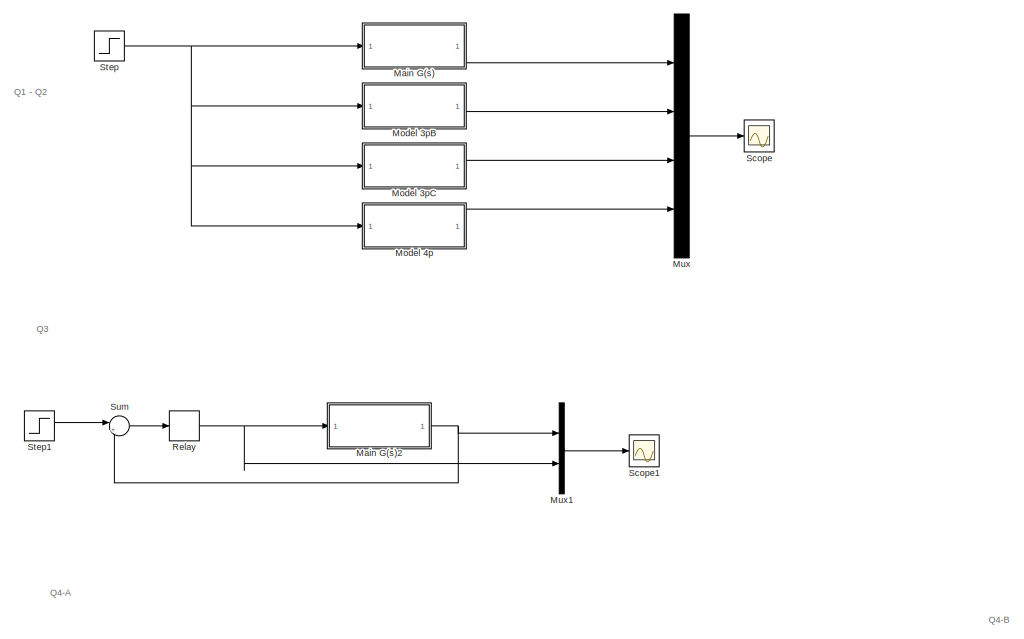
[diagram: root canvas - part 1/4, top left region]
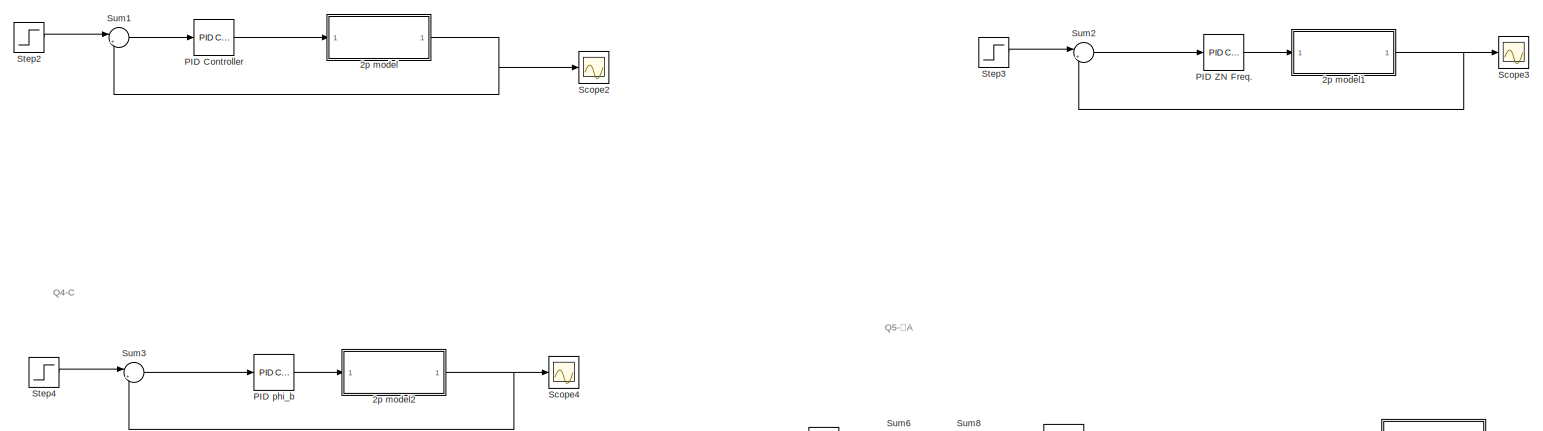
[diagram: root canvas - part 2/4, full width, middle band]
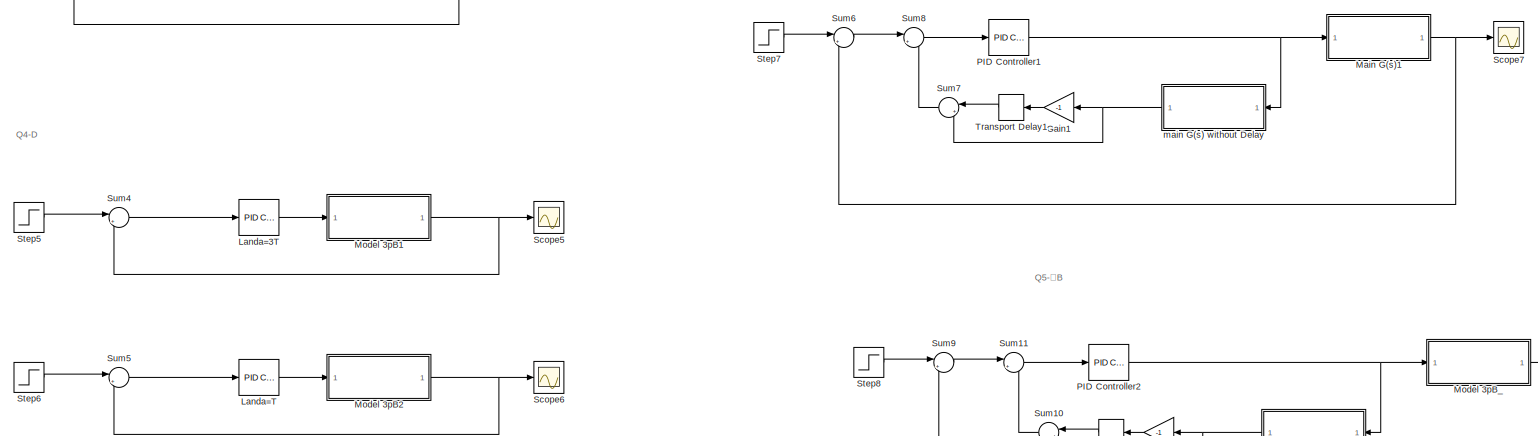
[diagram: root canvas - part 3/4, full width, bottom band]
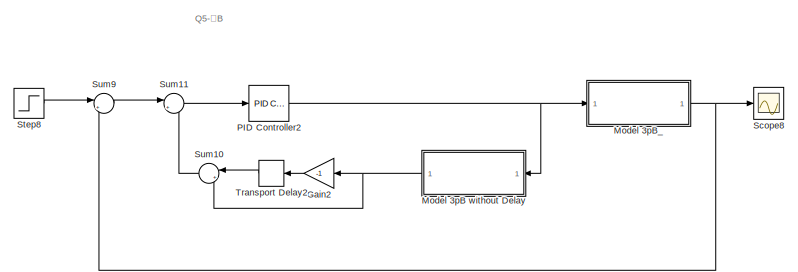
[diagram: root canvas - part 4/4, bottom right region]
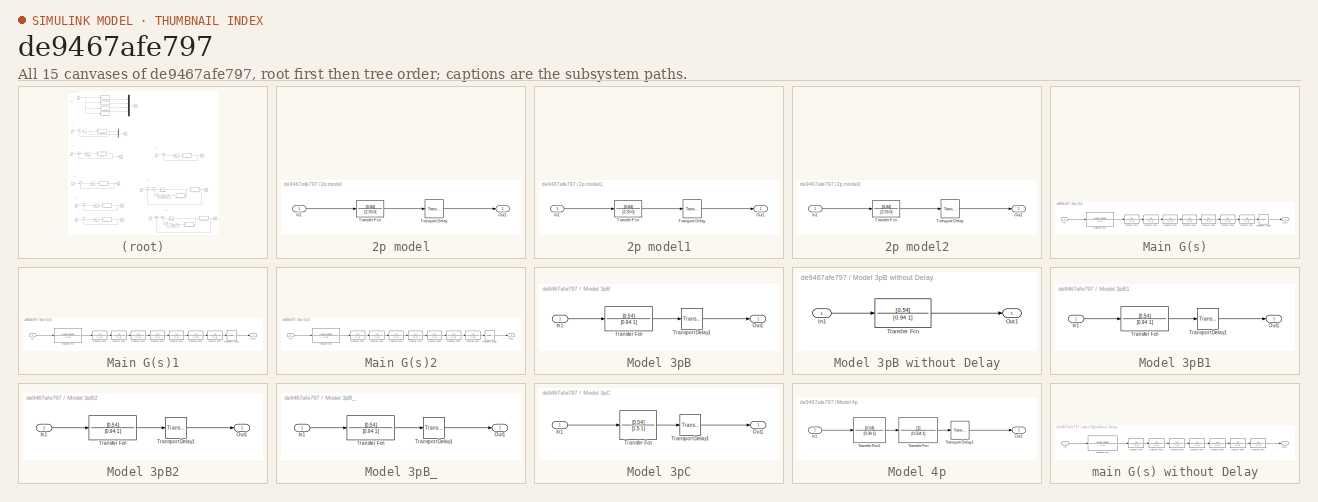
[diagram: thumbnail index - all 15 canvases of the model, root first then tree order]
MODEL slx_de9467afe797
KIND model
CONFIG AbsTol = auto
CONFIG EnableMultiTasking = off
CONFIG FixedStep = auto
CONFIG MaxStep = auto
CONFIG MinStep = auto
CONFIG RelTol = 1e-3
CONFIG SampleTimeConstraint = Unconstrained
CONFIG SolverName = VariableStepAuto
CONFIG StartTime = 0.0
CONFIG StopTime = 80
BLOCK [SubSystem] 2p model
  Ports = [1, 1]
  RequestExecContextInheritance = off
BLOCK [Inport] 2p model/In1
BLOCK [Outport] 2p model/Out1
BLOCK [TransferFcn] 2p model/Transfer Fcn
  Denominator = [2.33 0]
  Numerator = [0.84]
BLOCK [TransportDelay] 2p model/Transport Delay
  DelayTime = 2.33
  Ports = [1, 1]
BLOCK [SubSystem] 2p model1
  Ports = [1, 1]
  RequestExecContextInheritance = off
BLOCK [Inport] 2p model1/In1
BLOCK [Outport] 2p model1/Out1
BLOCK [TransferFcn] 2p model1/Transfer Fcn
  Denominator = [2.33 0]
  Numerator = [0.84]
BLOCK [TransportDelay] 2p model1/Transport Delay
  DelayTime = 2.33
  Ports = [1, 1]
BLOCK [SubSystem] 2p model2
  Ports = [1, 1]
  RequestExecContextInheritance = off
BLOCK [Inport] 2p model2/In1
BLOCK [Outport] 2p model2/Out1
BLOCK [TransferFcn] 2p model2/Transfer Fcn
  Denominator = [2.33 0]
  Numerator = [0.84]
BLOCK [TransportDelay] 2p model2/Transport Delay
  DelayTime = 2.33
  Ports = [1, 1]
BLOCK [Gain] Gain1
  Gain = -1
BLOCK [Gain] Gain2
  Gain = -1
BLOCK [Reference] Landa=3T  REF=pid_lib/PID Controller
  Ports = [1, 1]
  SourceBlock = pid_lib/PID Controller
  SourceProductBaseCode = SL
  SourceType = PID 1dof
BLOCK [Reference] Landa=T  REF=pid_lib/PID Controller
  Ports = [1, 1]
  SourceBlock = pid_lib/PID Controller
  SourceProductBaseCode = SL
  SourceType = PID 1dof
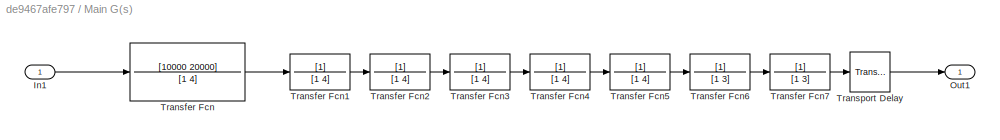
BLOCK [SubSystem] Main G(s)
  Ports = [1, 1]
  RequestExecContextInheritance = off
BLOCK [Inport] Main G(s)/In1
BLOCK [Outport] Main G(s)/Out1
BLOCK [TransferFcn] Main G(s)/Transfer Fcn
  Denominator = [1 4]
  Numerator = [10000 20000]
BLOCK [TransferFcn] Main G(s)/Transfer Fcn1
  Denominator = [1 4]
BLOCK [TransferFcn] Main G(s)/Transfer Fcn2
  Denominator = [1 4]
BLOCK [TransferFcn] Main G(s)/Transfer Fcn3
  Denominator = [1 4]
BLOCK [TransferFcn] Main G(s)/Transfer Fcn4
  Denominator = [1 4]
BLOCK [TransferFcn] Main G(s)/Transfer Fcn5
  Denominator = [1 4]
BLOCK [TransferFcn] Main G(s)/Transfer Fcn6
  Denominator = [1 3]
BLOCK [TransferFcn] Main G(s)/Transfer Fcn7
  Denominator = [1 3]
BLOCK [TransportDelay] Main G(s)/Transport Delay
  DelayTime = 1.5
  Ports = [1, 1]
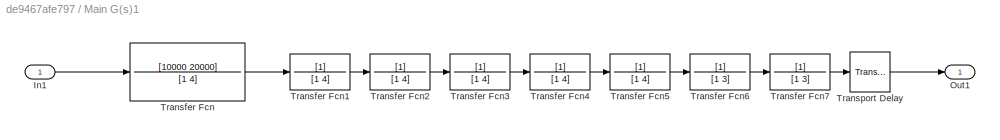
BLOCK [SubSystem] Main G(s)1
  Ports = [1, 1]
  RequestExecContextInheritance = off
BLOCK [Inport] Main G(s)1/In1
BLOCK [Outport] Main G(s)1/Out1
BLOCK [TransferFcn] Main G(s)1/Transfer Fcn
  Denominator = [1 4]
  Numerator = [10000 20000]
BLOCK [TransferFcn] Main G(s)1/Transfer Fcn1
  Denominator = [1 4]
BLOCK [TransferFcn] Main G(s)1/Transfer Fcn2
  Denominator = [1 4]
BLOCK [TransferFcn] Main G(s)1/Transfer Fcn3
  Denominator = [1 4]
BLOCK [TransferFcn] Main G(s)1/Transfer Fcn4
  Denominator = [1 4]
BLOCK [TransferFcn] Main G(s)1/Transfer Fcn5
  Denominator = [1 4]
BLOCK [TransferFcn] Main G(s)1/Transfer Fcn6
  Denominator = [1 3]
BLOCK [TransferFcn] Main G(s)1/Transfer Fcn7
  Denominator = [1 3]
BLOCK [TransportDelay] Main G(s)1/Transport Delay
  DelayTime = 1.5
  Ports = [1, 1]
BLOCK [SubSystem] Main G(s)2
  Ports = [1, 1]
  RequestExecContextInheritance = off
BLOCK [Inport] Main G(s)2/In1
BLOCK [Outport] Main G(s)2/Out1
BLOCK [TransferFcn] Main G(s)2/Transfer Fcn
  Denominator = [1 4]
  Numerator = [10000 20000]
BLOCK [TransferFcn] Main G(s)2/Transfer Fcn1
  Denominator = [1 4]
BLOCK [TransferFcn] Main G(s)2/Transfer Fcn2
  Denominator = [1 4]
BLOCK [TransferFcn] Main G(s)2/Transfer Fcn3
  Denominator = [1 4]
BLOCK [TransferFcn] Main G(s)2/Transfer Fcn4
  Denominator = [1 4]
BLOCK [TransferFcn] Main G(s)2/Transfer Fcn5
  Denominator = [1 4]
BLOCK [TransferFcn] Main G(s)2/Transfer Fcn6
  Denominator = [1 3]
BLOCK [TransferFcn] Main G(s)2/Transfer Fcn7
  Denominator = [1 3]
BLOCK [TransportDelay] Main G(s)2/Transport Delay
  DelayTime = 1.5
  Ports = [1, 1]
BLOCK [SubSystem] Model 3pB
  Ports = [1, 1]
  RequestExecContextInheritance = off
BLOCK [SubSystem] Model 3pB without Delay
  Ports = [1, 1]
  RequestExecContextInheritance = off
BLOCK [Inport] Model 3pB without Delay/In1
BLOCK [Outport] Model 3pB without Delay/Out1
BLOCK [TransferFcn] Model 3pB without Delay/Transfer Fcn
  Denominator = [0.94 1]
  Numerator = [0.54]
BLOCK [Inport] Model 3pB/In1
BLOCK [Outport] Model 3pB/Out1
BLOCK [TransferFcn] Model 3pB/Transfer Fcn
  Denominator = [0.94 1]
  Numerator = [0.54]
BLOCK [TransportDelay] Model 3pB/Transport Delay1
  DelayTime = 2.33
  Ports = [1, 1]
BLOCK [SubSystem] Model 3pB1
  Ports = [1, 1]
  RequestExecContextInheritance = off
BLOCK [Inport] Model 3pB1/In1
BLOCK [Outport] Model 3pB1/Out1
BLOCK [TransferFcn] Model 3pB1/Transfer Fcn
  Denominator = [0.94 1]
  Numerator = [0.54]
BLOCK [TransportDelay] Model 3pB1/Transport Delay1
  DelayTime = 2.33
  Ports = [1, 1]
BLOCK [SubSystem] Model 3pB2
  Ports = [1, 1]
  RequestExecContextInheritance = off
BLOCK [Inport] Model 3pB2/In1
BLOCK [Outport] Model 3pB2/Out1
BLOCK [TransferFcn] Model 3pB2/Transfer Fcn
  Denominator = [0.94 1]
  Numerator = [0.54]
BLOCK [TransportDelay] Model 3pB2/Transport Delay1
  DelayTime = 2.33
  Ports = [1, 1]
BLOCK [SubSystem] Model 3pB_
  Ports = [1, 1]
  RequestExecContextInheritance = off
BLOCK [Inport] Model 3pB_/In1
BLOCK [Outport] Model 3pB_/Out1
BLOCK [TransferFcn] Model 3pB_/Transfer Fcn
  Denominator = [0.94 1]
  Numerator = [0.54]
BLOCK [TransportDelay] Model 3pB_/Transport Delay1
  DelayTime = 2.33
  Ports = [1, 1]
BLOCK [SubSystem] Model 3pC
  Ports = [1, 1]
  RequestExecContextInheritance = off
BLOCK [Inport] Model 3pC/In1
BLOCK [Outport] Model 3pC/Out1
BLOCK [TransferFcn] Model 3pC/Transfer Fcn
  Denominator = [1.5 1]
  Numerator = [0.54]
BLOCK [TransportDelay] Model 3pC/Transport Delay1
  DelayTime = 2.33
  Ports = [1, 1]
BLOCK [SubSystem] Model 4p
  Ports = [1, 1]
  RequestExecContextInheritance = off
BLOCK [Inport] Model 4p/In1
BLOCK [Outport] Model 4p/Out1
BLOCK [TransferFcn] Model 4p/Transfer Fcn
  Denominator = [0.504 1]
BLOCK [TransferFcn] Model 4p/Transfer Fcn1
  Denominator = [0.38 1]
  Numerator = [0.54]
BLOCK [TransportDelay] Model 4p/Transport Delay1
  DelayTime = 2.33
  Ports = [1, 1]
BLOCK [Mux] Mux
  DisplayOption = bar
  Ports = [4, 1]
BLOCK [Mux] Mux1
  DisplayOption = bar
  Inputs = 2
  Ports = [2, 1]
BLOCK [Reference] PID Controller  REF=pid_lib/PID Controller
  Ports = [1, 1]
  SourceBlock = pid_lib/PID Controller
  SourceProductBaseCode = SL
  SourceType = PID 1dof
BLOCK [Reference] PID Controller1  REF=pid_lib/PID Controller
  Ports = [1, 1]
  SourceBlock = pid_lib/PID Controller
  SourceProductBaseCode = SL
  SourceType = PID 1dof
BLOCK [Reference] PID Controller2  REF=pid_lib/PID Controller
  Ports = [1, 1]
  SourceBlock = pid_lib/PID Controller
  SourceProductBaseCode = SL
  SourceType = PID 1dof
BLOCK [Reference] PID ZN Freq.  REF=pid_lib/PID Controller
  Ports = [1, 1]
  SourceBlock = pid_lib/PID Controller
  SourceProductBaseCode = SL
  SourceType = PID 1dof
BLOCK [Reference] PID phi_b  REF=pid_lib/PID Controller
  Ports = [1, 1]
  SourceBlock = pid_lib/PID Controller
  SourceProductBaseCode = SL
  SourceType = PID 1dof
BLOCK [Relay] Relay
  OffOutputValue = -5
  OnOutputValue = 5
BLOCK [Scope] Scope
  Floating = off
  NumInputPorts = 1
  Ports = [1]
  ScopeSpecificationString = Simulink.scopes.TimeScopeBlockCfg('CurrentConfiguration', extmgr.ConfigurationSet(extmgr.Configuration('Core','General UI',true,'FigureColor',[0 0 0]),extmgr.Configuration('Core','Source UI',true),extmgr.Configuration('Sources','WiredSimulink',true),extmgr.Configuration('Visuals','Time Domain',true,'SerializedDisplays',{struct('MinYLimReal','-0.06787','MaxYLimReal','0.61084','YLabelReal','','MinYL...<+1724ch>
BLOCK [Scope] Scope1
  Floating = off
  NumInputPorts = 1
  Ports = [1]
  ScopeSpecificationString = Simulink.scopes.TimeScopeBlockCfg('CurrentConfiguration', extmgr.ConfigurationSet(extmgr.Configuration('Core','General UI',true,'FigureColor',[0 0 0]),extmgr.Configuration('Core','Source UI',true),extmgr.Configuration('Sources','WiredSimulink',true,'DataLoggingVariableName','ScopeData1'),extmgr.Configuration('Visuals','Time Domain',true,'SerializedDisplays',{struct('MinYLimReal','-3.26045','MaxYLi...<+2173ch>
BLOCK [Scope] Scope2
  Floating = off
  NumInputPorts = 1
  Ports = [1]
  ScopeSpecificationString = Simulink.scopes.TimeScopeBlockCfg('CurrentConfiguration', extmgr.ConfigurationSet(extmgr.Configuration('Core','General UI',true,'FigureColor',[0 0 0]),extmgr.Configuration('Core','Source UI',true),extmgr.Configuration('Sources','WiredSimulink',true,'DataLoggingVariableName','ScopeData1'),extmgr.Configuration('Visuals','Time Domain',true,'SerializedDisplays',{struct('MinYLimReal','-0.02863','MaxYLi...<+1812ch>
BLOCK [Scope] Scope3
  Floating = off
  NumInputPorts = 1
  Ports = [1]
  ScopeSpecificationString = Simulink.scopes.TimeScopeBlockCfg('CurrentConfiguration', extmgr.ConfigurationSet(extmgr.Configuration('Core','General UI',true,'FigureColor',[0 0 0]),extmgr.Configuration('Core','Source UI',true),extmgr.Configuration('Sources','WiredSimulink',true,'DataLoggingVariableName','ScopeData1'),extmgr.Configuration('Visuals','Time Domain',true,'SerializedDisplays',{struct('MinYLimReal','-0.21739','MaxYLi...<+1805ch>
BLOCK [Scope] Scope4
  Floating = off
  NumInputPorts = 1
  Ports = [1]
  ScopeSpecificationString = Simulink.scopes.TimeScopeBlockCfg('CurrentConfiguration', extmgr.ConfigurationSet(extmgr.Configuration('Core','General UI',true,'FigureColor',[0 0 0]),extmgr.Configuration('Core','Source UI',true),extmgr.Configuration('Sources','WiredSimulink',true,'DataLoggingVariableName','ScopeData1'),extmgr.Configuration('Visuals','Time Domain',true,'SerializedDisplays',{struct('MinYLimReal','-0.16719','MaxYLi...<+1811ch>
BLOCK [Scope] Scope5
  Floating = off
  NumInputPorts = 1
  Ports = [1]
  ScopeSpecificationString = Simulink.scopes.TimeScopeBlockCfg('CurrentConfiguration', extmgr.ConfigurationSet(extmgr.Configuration('Core','General UI',true,'FigureColor',[0 0 0]),extmgr.Configuration('Core','Source UI',true),extmgr.Configuration('Sources','WiredSimulink',true,'DataLoggingVariableName','ScopeData2'),extmgr.Configuration('Visuals','Time Domain',true,'SerializedDisplays',{struct('MinYLimReal','-0.16719','MaxYLi...<+1811ch>
BLOCK [Scope] Scope6
  Floating = off
  NumInputPorts = 1
  Ports = [1]
  ScopeSpecificationString = Simulink.scopes.TimeScopeBlockCfg('CurrentConfiguration', extmgr.ConfigurationSet(extmgr.Configuration('Core','General UI',true,'FigureColor',[0 0 0]),extmgr.Configuration('Core','Source UI',true),extmgr.Configuration('Sources','WiredSimulink',true,'DataLoggingVariableName','ScopeData3'),extmgr.Configuration('Visuals','Time Domain',true,'SerializedDisplays',{struct('MinYLimReal','-0.2061','MaxYLim...<+1805ch>
BLOCK [Scope] Scope7
  Floating = off
  NumInputPorts = 1
  Ports = [1]
  ScopeSpecificationString = Simulink.scopes.TimeScopeBlockCfg('CurrentConfiguration', extmgr.ConfigurationSet(extmgr.Configuration('Core','General UI',true,'FigureColor',[0 0 0]),extmgr.Configuration('Core','Source UI',true),extmgr.Configuration('Sources','WiredSimulink',true,'DataLoggingVariableName','ScopeData1'),extmgr.Configuration('Visuals','Time Domain',true,'SerializedDisplays',{struct('MinYLimReal','-0.16719','MaxYLi...<+1822ch>
BLOCK [Scope] Scope8
  Floating = off
  NumInputPorts = 1
  Ports = [1]
  ScopeSpecificationString = Simulink.scopes.TimeScopeBlockCfg('CurrentConfiguration', extmgr.ConfigurationSet(extmgr.Configuration('Core','General UI',true,'FigureColor',[0 0 0]),extmgr.Configuration('Core','Source UI',true),extmgr.Configuration('Sources','WiredSimulink',true,'DataLoggingVariableName','ScopeData1'),extmgr.Configuration('Visuals','Time Domain',true,'SerializedDisplays',{struct('MinYLimReal','-0.16719','MaxYLi...<+1826ch>
BLOCK [Step] Step
  SampleTime = 0
  Time = 0
BLOCK [Step] Step1
  SampleTime = 0
  Time = 0
BLOCK [Step] Step2
  SampleTime = 0
  Time = 0
BLOCK [Step] Step3
  SampleTime = 0
  Time = 0
BLOCK [Step] Step4
  SampleTime = 0
  Time = 0
BLOCK [Step] Step5
  SampleTime = 0
  Time = 0
BLOCK [Step] Step6
  SampleTime = 0
  Time = 0
BLOCK [Step] Step7
  SampleTime = 0
  Time = 0
BLOCK [Step] Step8
  SampleTime = 0
  Time = 0
BLOCK [Sum] Sum
  Inputs = |+-
  Ports = [2, 1]
BLOCK [Sum] Sum1
  Inputs = |+-
  Ports = [2, 1]
BLOCK [Sum] Sum10
  Inputs = |++
  Ports = [2, 1]
BLOCK [Sum] Sum11
  Inputs = |+-
  Ports = [2, 1]
BLOCK [Sum] Sum2
  Inputs = |+-
  Ports = [2, 1]
BLOCK [Sum] Sum3
  Inputs = |+-
  Ports = [2, 1]
BLOCK [Sum] Sum4
  Inputs = |+-
  Ports = [2, 1]
BLOCK [Sum] Sum5
  Inputs = |+-
  Ports = [2, 1]
BLOCK [Sum] Sum6
  Inputs = |+-
  Ports = [2, 1]
BLOCK [Sum] Sum7
  Inputs = |++
  Ports = [2, 1]
BLOCK [Sum] Sum8
  Inputs = |+-
  Ports = [2, 1]
BLOCK [Sum] Sum9
  Inputs = |+-
  Ports = [2, 1]
BLOCK [TransportDelay] Transport Delay1
  DelayTime = 1.5
  Ports = [1, 1]
BLOCK [TransportDelay] Transport Delay2
  DelayTime = 2.33
  Ports = [1, 1]
BLOCK [SubSystem] main G(s) without Delay
  NameLocation = top
  Ports = [1, 1]
  RequestExecContextInheritance = off
BLOCK [Inport] main G(s) without Delay/In1
BLOCK [Outport] main G(s) without Delay/Out1
BLOCK [TransferFcn] main G(s) without Delay/Transfer Fcn
  Denominator = [1 4]
  Numerator = [10000 20000]
BLOCK [TransferFcn] main G(s) without Delay/Transfer Fcn1
  Denominator = [1 4]
BLOCK [TransferFcn] main G(s) without Delay/Transfer Fcn2
  Denominator = [1 4]
BLOCK [TransferFcn] main G(s) without Delay/Transfer Fcn3
  Denominator = [1 4]
BLOCK [TransferFcn] main G(s) without Delay/Transfer Fcn4
  Denominator = [1 4]
BLOCK [TransferFcn] main G(s) without Delay/Transfer Fcn5
  Denominator = [1 4]
BLOCK [TransferFcn] main G(s) without Delay/Transfer Fcn6
  Denominator = [1 3]
BLOCK [TransferFcn] main G(s) without Delay/Transfer Fcn7
  Denominator = [1 3]
ANNOTATION (root): Q4-A
ANNOTATION (root): Q4-B
ANNOTATION (root): Q4-C
ANNOTATION (root): Q4-D
ANNOTATION (root): Q5-َA
ANNOTATION (root): Q5-َB
ANNOTATION (root): Q1 - Q2
ANNOTATION (root): Q3
LINE 2p model/In1:1 -> 2p model/Transfer Fcn:1
LINE 2p model/Transfer Fcn:1 -> 2p model/Transport Delay:1
LINE 2p model/Transport Delay:1 -> 2p model/Out1:1
LINE 2p model1/In1:1 -> 2p model1/Transfer Fcn:1
LINE 2p model1/Transfer Fcn:1 -> 2p model1/Transport Delay:1
LINE 2p model1/Transport Delay:1 -> 2p model1/Out1:1
NET 2p model1:1 -> Scope3:1, Sum2:2
LINE 2p model2/In1:1 -> 2p model2/Transfer Fcn:1
LINE 2p model2/Transfer Fcn:1 -> 2p model2/Transport Delay:1
LINE 2p model2/Transport Delay:1 -> 2p model2/Out1:1
NET 2p model2:1 -> Scope4:1, Sum3:2
NET 2p model:1 -> Scope2:1, Sum1:2
LINE Gain1:1 -> Transport Delay1:1
LINE Gain2:1 -> Transport Delay2:1
LINE Landa=3T:1 -> Model 3pB1:1
LINE Landa=T:1 -> Model 3pB2:1
LINE Main G(s)/In1:1 -> Main G(s)/Transfer Fcn:1
LINE Main G(s)/Transfer Fcn1:1 -> Main G(s)/Transfer Fcn2:1
LINE Main G(s)/Transfer Fcn2:1 -> Main G(s)/Transfer Fcn3:1
LINE Main G(s)/Transfer Fcn3:1 -> Main G(s)/Transfer Fcn4:1
LINE Main G(s)/Transfer Fcn4:1 -> Main G(s)/Transfer Fcn5:1
LINE Main G(s)/Transfer Fcn5:1 -> Main G(s)/Transfer Fcn6:1
LINE Main G(s)/Transfer Fcn6:1 -> Main G(s)/Transfer Fcn7:1
LINE Main G(s)/Transfer Fcn7:1 -> Main G(s)/Transport Delay:1
LINE Main G(s)/Transfer Fcn:1 -> Main G(s)/Transfer Fcn1:1
LINE Main G(s)/Transport Delay:1 -> Main G(s)/Out1:1
LINE Main G(s)1/In1:1 -> Main G(s)1/Transfer Fcn:1
LINE Main G(s)1/Transfer Fcn1:1 -> Main G(s)1/Transfer Fcn2:1
LINE Main G(s)1/Transfer Fcn2:1 -> Main G(s)1/Transfer Fcn3:1
LINE Main G(s)1/Transfer Fcn3:1 -> Main G(s)1/Transfer Fcn4:1
LINE Main G(s)1/Transfer Fcn4:1 -> Main G(s)1/Transfer Fcn5:1
LINE Main G(s)1/Transfer Fcn5:1 -> Main G(s)1/Transfer Fcn6:1
LINE Main G(s)1/Transfer Fcn6:1 -> Main G(s)1/Transfer Fcn7:1
LINE Main G(s)1/Transfer Fcn7:1 -> Main G(s)1/Transport Delay:1
LINE Main G(s)1/Transfer Fcn:1 -> Main G(s)1/Transfer Fcn1:1
LINE Main G(s)1/Transport Delay:1 -> Main G(s)1/Out1:1
NET Main G(s)1:1 -> Scope7:1, Sum6:2
LINE Main G(s)2/In1:1 -> Main G(s)2/Transfer Fcn:1
LINE Main G(s)2/Transfer Fcn1:1 -> Main G(s)2/Transfer Fcn2:1
LINE Main G(s)2/Transfer Fcn2:1 -> Main G(s)2/Transfer Fcn3:1
LINE Main G(s)2/Transfer Fcn3:1 -> Main G(s)2/Transfer Fcn4:1
LINE Main G(s)2/Transfer Fcn4:1 -> Main G(s)2/Transfer Fcn5:1
LINE Main G(s)2/Transfer Fcn5:1 -> Main G(s)2/Transfer Fcn6:1
LINE Main G(s)2/Transfer Fcn6:1 -> Main G(s)2/Transfer Fcn7:1
LINE Main G(s)2/Transfer Fcn7:1 -> Main G(s)2/Transport Delay:1
LINE Main G(s)2/Transfer Fcn:1 -> Main G(s)2/Transfer Fcn1:1
LINE Main G(s)2/Transport Delay:1 -> Main G(s)2/Out1:1
NET Main G(s)2:1 -> Mux1:1, Sum:2
LINE Main G(s):1 -> Mux:1
LINE Model 3pB without Delay/In1:1 -> Model 3pB without Delay/Transfer Fcn:1
LINE Model 3pB without Delay/Transfer Fcn:1 -> Model 3pB without Delay/Out1:1
NET Model 3pB without Delay:1 -> Gain2:1, Sum10:2
LINE Model 3pB/In1:1 -> Model 3pB/Transfer Fcn:1
LINE Model 3pB/Transfer Fcn:1 -> Model 3pB/Transport Delay1:1
LINE Model 3pB/Transport Delay1:1 -> Model 3pB/Out1:1
LINE Model 3pB1/In1:1 -> Model 3pB1/Transfer Fcn:1
LINE Model 3pB1/Transfer Fcn:1 -> Model 3pB1/Transport Delay1:1
LINE Model 3pB1/Transport Delay1:1 -> Model 3pB1/Out1:1
NET Model 3pB1:1 -> Scope5:1, Sum4:2
LINE Model 3pB2/In1:1 -> Model 3pB2/Transfer Fcn:1
LINE Model 3pB2/Transfer Fcn:1 -> Model 3pB2/Transport Delay1:1
LINE Model 3pB2/Transport Delay1:1 -> Model 3pB2/Out1:1
NET Model 3pB2:1 -> Scope6:1, Sum5:2
LINE Model 3pB:1 -> Mux:2
LINE Model 3pB_/In1:1 -> Model 3pB_/Transfer Fcn:1
LINE Model 3pB_/Transfer Fcn:1 -> Model 3pB_/Transport Delay1:1
LINE Model 3pB_/Transport Delay1:1 -> Model 3pB_/Out1:1
NET Model 3pB_:1 -> Scope8:1, Sum9:2
LINE Model 3pC/In1:1 -> Model 3pC/Transfer Fcn:1
LINE Model 3pC/Transfer Fcn:1 -> Model 3pC/Transport Delay1:1
LINE Model 3pC/Transport Delay1:1 -> Model 3pC/Out1:1
LINE Model 3pC:1 -> Mux:3
LINE Model 4p/In1:1 -> Model 4p/Transfer Fcn1:1
LINE Model 4p/Transfer Fcn1:1 -> Model 4p/Transfer Fcn:1
LINE Model 4p/Transfer Fcn:1 -> Model 4p/Transport Delay1:1
LINE Model 4p/Transport Delay1:1 -> Model 4p/Out1:1
LINE Model 4p:1 -> Mux:4
LINE Mux1:1 -> Scope1:1
LINE Mux:1 -> Scope:1
NET PID Controller1:1 -> Main G(s)1:1, main G(s) without Delay:1
NET PID Controller2:1 -> Model 3pB without Delay:1, Model 3pB_:1
LINE PID Controller:1 -> 2p model:1
LINE PID ZN Freq.:1 -> 2p model1:1
LINE PID phi_b:1 -> 2p model2:1
NET Relay:1 -> Main G(s)2:1, Mux1:2
LINE Step1:1 -> Sum:1
LINE Step2:1 -> Sum1:1
LINE Step3:1 -> Sum2:1
LINE Step4:1 -> Sum3:1
LINE Step5:1 -> Sum4:1
LINE Step6:1 -> Sum5:1
LINE Step7:1 -> Sum6:1
LINE Step8:1 -> Sum9:1
NET Step:1 -> Main G(s):1, Model 3pB:1, Model 3pC:1, Model 4p:1
LINE Sum10:1 -> Sum11:2
LINE Sum11:1 -> PID Controller2:1
LINE Sum1:1 -> PID Controller:1
LINE Sum2:1 -> PID ZN Freq.:1
LINE Sum3:1 -> PID phi_b:1
LINE Sum4:1 -> Landa=3T:1
LINE Sum5:1 -> Landa=T:1
LINE Sum6:1 -> Sum8:1
LINE Sum7:1 -> Sum8:2
LINE Sum8:1 -> PID Controller1:1
LINE Sum9:1 -> Sum11:1
LINE Sum:1 -> Relay:1
LINE Transport Delay1:1 -> Sum7:1
LINE Transport Delay2:1 -> Sum10:1
LINE main G(s) without Delay/In1:1 -> main G(s) without Delay/Transfer Fcn:1
LINE main G(s) without Delay/Transfer Fcn1:1 -> main G(s) without Delay/Transfer Fcn2:1
LINE main G(s) without Delay/Transfer Fcn2:1 -> main G(s) without Delay/Transfer Fcn3:1
LINE main G(s) without Delay/Transfer Fcn3:1 -> main G(s) without Delay/Transfer Fcn4:1
LINE main G(s) without Delay/Transfer Fcn4:1 -> main G(s) without Delay/Transfer Fcn5:1
LINE main G(s) without Delay/Transfer Fcn5:1 -> main G(s) without Delay/Transfer Fcn6:1
LINE main G(s) without Delay/Transfer Fcn6:1 -> main G(s) without Delay/Transfer Fcn7:1
LINE main G(s) without Delay/Transfer Fcn7:1 -> main G(s) without Delay/Out1:1
LINE main G(s) without Delay/Transfer Fcn:1 -> main G(s) without Delay/Transfer Fcn1:1
NET main G(s) without Delay:1 -> Gain1:1, Sum7:2
note: NET lines group one-source signal fan-out (src -> all destinations, sorted); 1:1 wires keep LINE
